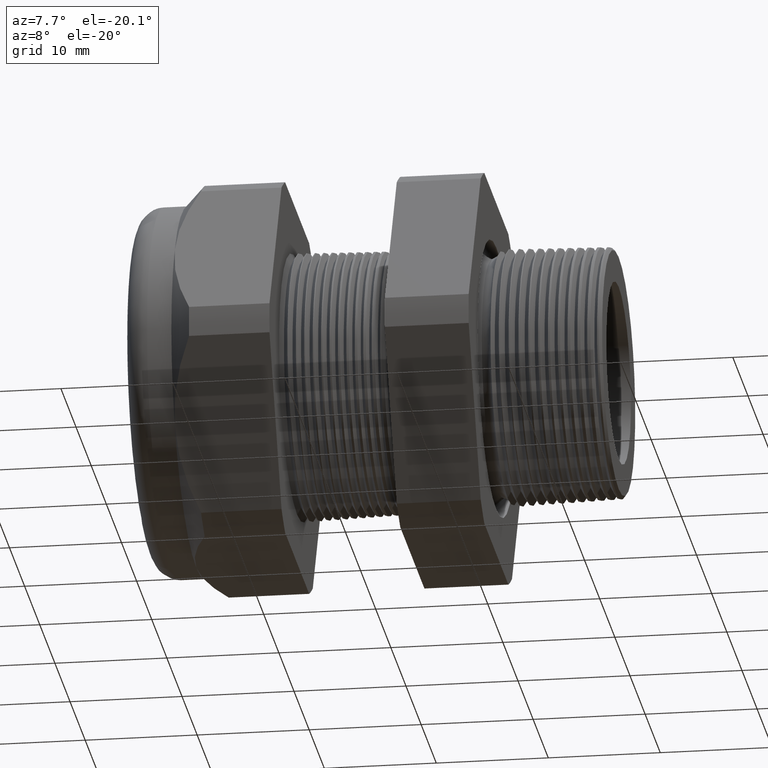
[diagram: clean part render]
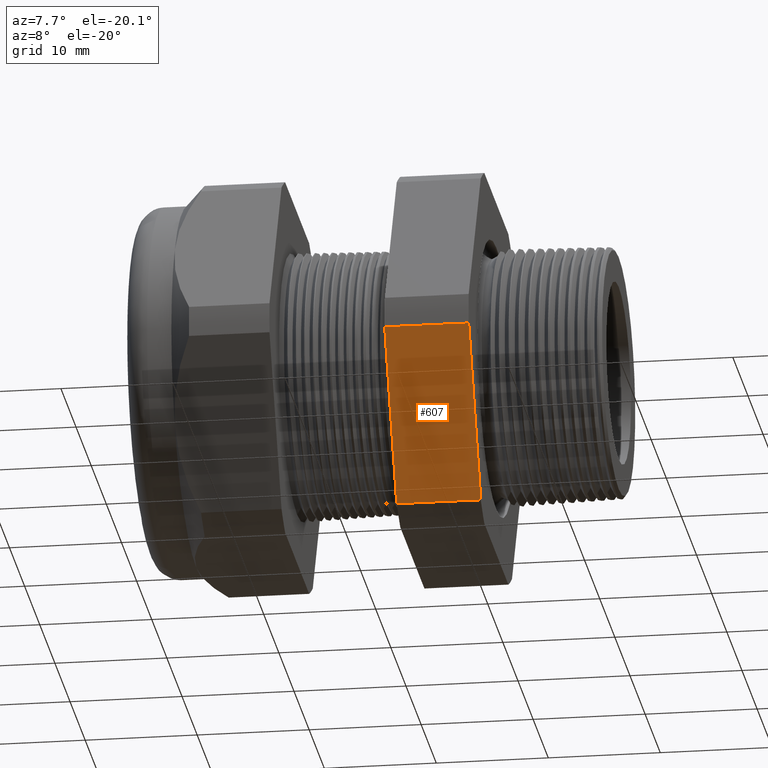
[diagram: same view with one face highlighted and labeled with its STEP entity id]
A machine part, auxiliary view. The second image highlights one B-rep face of the part: STEP entity #607.
In plain terms, the highlighted planar face has unit normal (0, -0.866, -0.5).
Its self-contained STEP definition (entity closure, byte-faithful):
#436 = EDGE_CURVE ( 'NONE', #461, #462, #1983, .T. ) ;
#461 = VERTEX_POINT ( 'NONE', #2057 ) ;
#462 = VERTEX_POINT ( 'NONE', #2056 ) ;
#522 = VERTEX_POINT ( 'NONE', #2189 ) ;
#524 = EDGE_CURVE ( 'NONE', #522, #525, #2188, .T. ) ;
#525 = VERTEX_POINT ( 'NONE', #2184 ) ;
#605 = EDGE_CURVE ( 'NONE', #461, #525, #2275, .T. ) ;
#607 = ADVANCED_FACE ( 'NONE', ( #2271 ), #2335, .T. ) ;
#608 = EDGE_LOOP ( 'NONE', ( #658, #659, #660, #662 ) ) ;
#658 = ORIENTED_EDGE ( 'NONE', *, *, #605, .T. ) ;
#659 = ORIENTED_EDGE ( 'NONE', *, *, #524, .F. ) ;
#660 = ORIENTED_EDGE ( 'NONE', *, *, #661, .F. ) ;
#661 = EDGE_CURVE ( 'NONE', #462, #522, #2397, .T. ) ;
#662 = ORIENTED_EDGE ( 'NONE', *, *, #436, .F. ) ;
#1983 = LINE ( 'NONE', #1989, #2044 ) ;
#1989 = CARTESIAN_POINT ( 'NONE',  ( -0.3100000000000000000, -0.2379165124598852700, -0.8879165124598854500 ) ) ;
#2043 = DIRECTION ( 'NONE',  ( 0.0000000000000000000, 0.5000000000000001100, -0.8660254037844386000 ) ) ;
#2044 = VECTOR ( 'NONE', #2043, 39.37007874015748100 ) ;
#2056 = CARTESIAN_POINT ( 'NONE',  ( -0.3100000000000000000, -0.4063420493440881300, -0.5961949252843793400 ) ) ;
#2057 = CARTESIAN_POINT ( 'NONE',  ( -0.3100000000000000000, -0.7194909755756819800, -0.05380507471562082100 ) ) ;
#2184 = CARTESIAN_POINT ( 'NONE',  ( -0.6052755905511810800, -0.7194909755756819800, -0.05380507471562082100 ) ) ;
#2185 = DIRECTION ( 'NONE',  ( 0.0000000000000000000, -0.5000000000000001100, 0.8660254037844386000 ) ) ;
#2186 = VECTOR ( 'NONE', #2185, 39.37007874015748100 ) ;
#2187 = CARTESIAN_POINT ( 'NONE',  ( -0.6052755905511809600, -0.2379165124598852700, -0.8879165124598854500 ) ) ;
#2188 = LINE ( 'NONE', #2187, #2186 ) ;
#2189 = CARTESIAN_POINT ( 'NONE',  ( -0.6052755905511810800, -0.4063420493440881300, -0.5961949252843793400 ) ) ;
#2271 = FACE_OUTER_BOUND ( 'NONE', #608, .T. ) ;
#2272 = DIRECTION ( 'NONE',  ( -1.000000000000000000, 0.0000000000000000000, 0.0000000000000000000 ) ) ;
#2273 = VECTOR ( 'NONE', #2272, 39.37007874015748100 ) ;
#2274 = CARTESIAN_POINT ( 'NONE',  ( 0.1200000000000000900, -0.7194909755756819800, -0.05380507471562082100 ) ) ;
#2275 = LINE ( 'NONE', #2274, #2273 ) ;
#2331 = DIRECTION ( 'NONE',  ( 0.0000000000000000000, 0.5000000000000001100, -0.8660254037844386000 ) ) ;
#2332 = DIRECTION ( 'NONE',  ( 0.0000000000000000000, -0.8660254037844386000, -0.5000000000000001100 ) ) ;
#2333 = CARTESIAN_POINT ( 'NONE',  ( 0.1200000000000000900, -0.4063420493440883000, -0.5961949252843793400 ) ) ;
#2334 = AXIS2_PLACEMENT_3D ( 'NONE', #2333, #2332, #2331 ) ;
#2335 = PLANE ( 'NONE',  #2334 ) ;
#2394 = DIRECTION ( 'NONE',  ( -1.000000000000000000, 0.0000000000000000000, 0.0000000000000000000 ) ) ;
#2395 = VECTOR ( 'NONE', #2394, 39.37007874015748100 ) ;
#2396 = CARTESIAN_POINT ( 'NONE',  ( 0.1200000000000000900, -0.4063420493440881300, -0.5961949252843793400 ) ) ;
#2397 = LINE ( 'NONE', #2396, #2395 ) ;